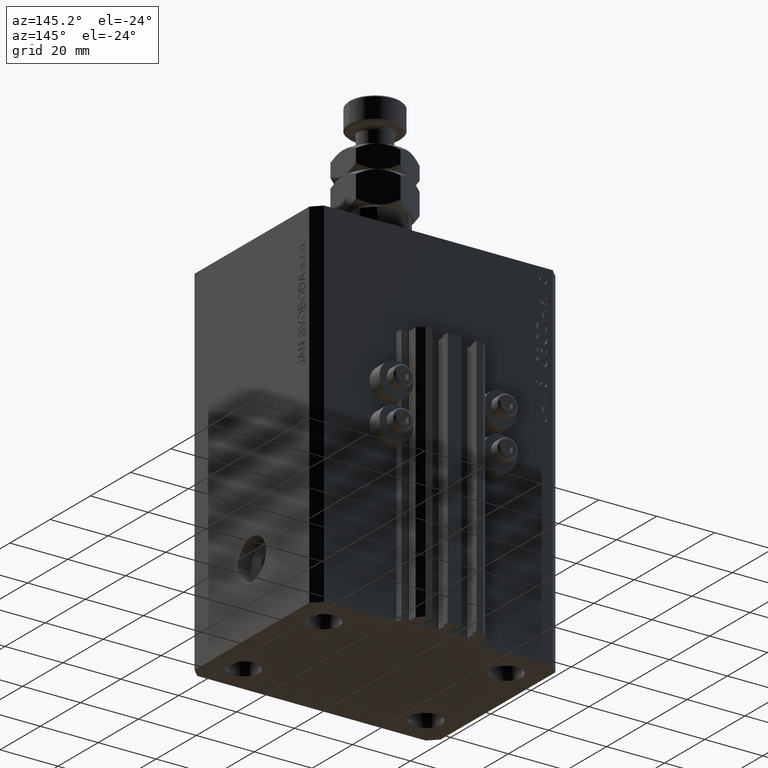
[diagram: clean part render]
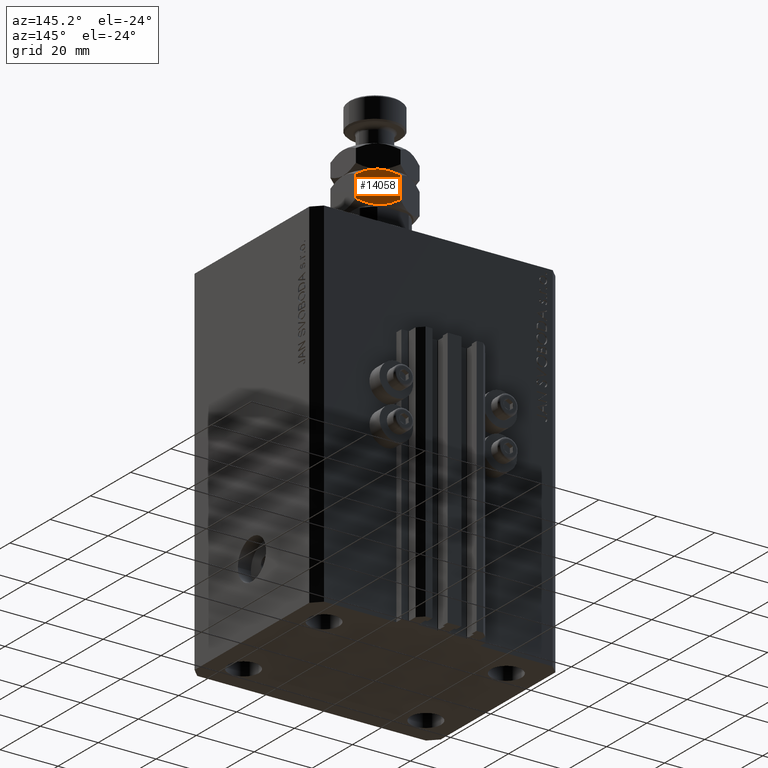
[diagram: same view with one face highlighted and labeled with its STEP entity id]
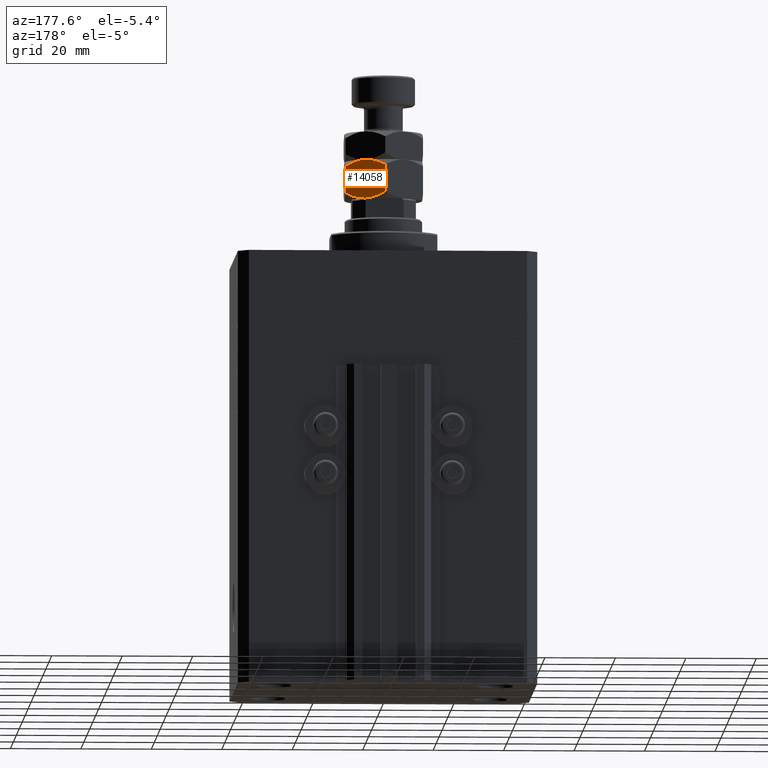
[diagram: same view with one face highlighted and labeled with its STEP entity id]
A machine part, auxiliary view. The second image highlights one B-rep face of the part: STEP entity #14058.
A second angle (auxiliary view) of the same face is appended — the face is thin or edge-on in the first view.
In plain terms, the highlighted planar face has unit normal (-0.5, -0.866, 0).
Its self-contained STEP definition (entity closure, byte-faithful):
#344 = CARTESIAN_POINT ( 'NONE',  ( 6.470625887979895019, 8.965888323921213043, 10.95634070256487824 ) ) ;
#766 = AXIS2_PLACEMENT_3D ( 'NONE', #17113, #13167, #32461 ) ;
#1714 = CARTESIAN_POINT ( 'NONE',  ( 9.006588997586899406E-16, 12.70170592217176342, 1.701705922171758312 ) ) ;
#3205 = EDGE_CURVE ( 'NONE', #17703, #21466, #26308, .T. ) ;
#3219 = LINE ( 'NONE', #33627, #34595 ) ;
#4048 = CARTESIAN_POINT ( 'NONE',  ( 10.13752086928278295, 6.848805519375901874, 9.796246636118256745 ) ) ;
#4731 = CARTESIAN_POINT ( 'NONE',  ( 0.000000000000000000, 12.70170592217176342, 11.00000000000000000 ) ) ;
#5072 = CARTESIAN_POINT ( 'NONE',  ( 5.018290712253357100, 9.804394428580492260, -1.345088320239828938E-15 ) ) ;
#5149 = CARTESIAN_POINT ( 'NONE',  ( 9.251785468064189999, 7.360185091700237159, 0.7776848045220270400 ) ) ;
#5334 = B_SPLINE_CURVE_WITH_KNOTS ( 'NONE', 3,
 ( #5567, #20872, #9033, #23857, #20633, #38957, #5072, #35739 ),
 .UNSPECIFIED., .F., .F.,
 ( 4, 2, 2, 4 ),
 ( 2.544311317623912303E-07, 0.003291871675740029504, 0.004937680298044162114, 0.006583488920348296025 ),
 .UNSPECIFIED. ) ;
#5567 = CARTESIAN_POINT ( 'NONE',  ( 9.006588997586899406E-16, 12.70170592217176342, 1.701705922171758312 ) ) ;
#6463 = CARTESIAN_POINT ( 'NONE',  ( -4.327962126576701651E-16, 12.70170592217176342, 9.298294077828241910 ) ) ;
#7002 = EDGE_CURVE ( 'NONE', #21466, #28050, #20219, .T. ) ;
#7759 = CARTESIAN_POINT ( 'NONE',  ( 11.00000000000000000, 6.350852961085883486, 9.298294077828240134 ) ) ;
#8159 = VECTOR ( 'NONE', #42293, 1000.000000000000000 ) ;
#8380 = CARTESIAN_POINT ( 'NONE',  ( 11.00000000000000000, 6.350852961085883486, 1.701705922171761198 ) ) ;
#9033 = CARTESIAN_POINT ( 'NONE',  ( 1.744478007639208350, 11.69453107486588195, 0.7806233875467714078 ) ) ;
#9838 = EDGE_CURVE ( 'NONE', #16134, #18060, #18182, .T. ) ;
#9946 = PLANE ( 'NONE',  #766 ) ;
#10624 = DIRECTION ( 'NONE',  ( -0.000000000000000000, -0.000000000000000000, -1.000000000000000000 ) ) ;
#11709 = CARTESIAN_POINT ( 'NONE',  ( 5.499999999999998224, 9.526279441628819455, 11.00000000000000000 ) ) ;
#12454 = CARTESIAN_POINT ( 'NONE',  ( 11.00000000000000000, 6.350852961085883486, 1.701705922171761198 ) ) ;
#13167 = DIRECTION ( 'NONE',  ( -0.4999999999999998890, -0.8660254037844387076, 0.000000000000000000 ) ) ;
#14058 = ADVANCED_FACE ( 'NONE', ( #31739 ), #9946, .F. ) ;
#15411 = CARTESIAN_POINT ( 'NONE',  ( 5.981709287746640236, 9.248164454677155533, 11.00000000000000000 ) ) ;
#15635 = CARTESIAN_POINT ( 'NONE',  ( 1.748214531935807559, 11.69237379155741152, 10.22231519547797518 ) ) ;
#16032 = CARTESIAN_POINT ( 'NONE',  ( 7.397073880711847238, 8.431003325927232339, 0.1689086083647579339 ) ) ;
#16134 = VERTEX_POINT ( 'NONE', #22378 ) ;
#17113 = CARTESIAN_POINT ( 'NONE',  ( 11.00000000000000000, 6.350852961085883486, 11.00000000000000000 ) ) ;
#17152 = ORIENTED_EDGE ( 'NONE', *, *, #45561, .T. ) ;
#17703 = VERTEX_POINT ( 'NONE', #34833 ) ;
#18060 = VERTEX_POINT ( 'NONE', #12454 ) ;
#18182 = B_SPLINE_CURVE_WITH_KNOTS ( 'NONE', 3,
 ( #27667, #19494, #16032, #5149, #20229, #8380 ),
 .UNSPECIFIED., .F., .F.,
 ( 4, 2, 4 ),
 ( 0.006583488920348296025, 0.009852050593448707927, 0.01312061226654912330 ),
 .UNSPECIFIED. ) ;
#19126 = CARTESIAN_POINT ( 'NONE',  ( 9.255521992360790762, 7.358027808391762292, 10.21937661245322460 ) ) ;
#19494 = CARTESIAN_POINT ( 'NONE',  ( 6.456670474420574735, 8.973945485696338764, -1.192622389734053694E-15 ) ) ;
#19844 = CARTESIAN_POINT ( 'NONE',  ( 5.499999999999998224, 9.526279441628819455, 11.00000000000000000 ) ) ;
#20034 = ORIENTED_EDGE ( 'NONE', *, *, #23024, .F. ) ;
#20219 = B_SPLINE_CURVE_WITH_KNOTS ( 'NONE', 3,
 ( #19844, #38645, #46528, #15635, #30732, #38882 ),
 .UNSPECIFIED., .F., .F.,
 ( 4, 2, 4 ),
 ( 0.006583488920348298627, 0.009852050593448711396, 0.01312061226654912156 ),
 .UNSPECIFIED. ) ;
#20229 = CARTESIAN_POINT ( 'NONE',  ( 10.13851939750335696, 6.848229018838962290, 1.204329864418605567 ) ) ;
#20633 = CARTESIAN_POINT ( 'NONE',  ( 3.579894028994819788, 10.63485314086127431, 0.2081220748670722098 ) ) ;
#20872 = CARTESIAN_POINT ( 'NONE',  ( 0.8624791307172143817, 12.20375336388174503, 1.203753363881742811 ) ) ;
#21466 = VERTEX_POINT ( 'NONE', #46116 ) ;
#21590 = EDGE_CURVE ( 'NONE', #27431, #16134, #5334, .T. ) ;
#22378 = CARTESIAN_POINT ( 'NONE',  ( 5.499999999999999112, 9.526279441628826561, 0.000000000000000000 ) ) ;
#22836 = ORIENTED_EDGE ( 'NONE', *, *, #7002, .F. ) ;
#23024 = EDGE_CURVE ( 'NONE', #28050, #27431, #38854, .T. ) ;
#23857 = CARTESIAN_POINT ( 'NONE',  ( 3.115032419653387397, 10.90324111615047364, 0.3282192120904029453 ) ) ;
#23964 = ORIENTED_EDGE ( 'NONE', *, *, #3205, .F. ) ;
#26308 = B_SPLINE_CURVE_WITH_KNOTS ( 'NONE', 3,
 ( #7759, #4048, #19126, #46309, #34222, #344, #15411, #11709 ),
 .UNSPECIFIED., .F., .F.,
 ( 4, 2, 2, 4 ),
 ( 2.544311317614349830E-07, 0.003291871675740032106, 0.004937680298044164716, 0.006583488920348298627 ),
 .UNSPECIFIED. ) ;
#27431 = VERTEX_POINT ( 'NONE', #1714 ) ;
#27667 = CARTESIAN_POINT ( 'NONE',  ( 5.499999999999999112, 9.526279441628826561, 0.000000000000000000 ) ) ;
#28050 = VERTEX_POINT ( 'NONE', #6463 ) ;
#30732 = CARTESIAN_POINT ( 'NONE',  ( 0.8614806024966432663, 12.20432986441868728, 9.795670135581396210 ) ) ;
#31739 = FACE_OUTER_BOUND ( 'NONE', #32208, .T. ) ;
#32208 = EDGE_LOOP ( 'NONE', ( #36901, #20034, #22836, #23964, #17152, #33587 ) ) ;
#32461 = DIRECTION ( 'NONE',  ( 0.8660254037844387076, -0.4999999999999998890, 0.000000000000000000 ) ) ;
#33587 = ORIENTED_EDGE ( 'NONE', *, *, #9838, .F. ) ;
#33627 = CARTESIAN_POINT ( 'NONE',  ( 11.00000000000000000, 6.350852961085883486, 11.00000000000000000 ) ) ;
#34222 = CARTESIAN_POINT ( 'NONE',  ( 7.420105971005182433, 8.417705742396377033, 10.79187792513293154 ) ) ;
#34595 = VECTOR ( 'NONE', #10624, 1000.000000000000000 ) ;
#34833 = CARTESIAN_POINT ( 'NONE',  ( 11.00000000000000000, 6.350852961085883486, 9.298294077828240134 ) ) ;
#35739 = CARTESIAN_POINT ( 'NONE',  ( 5.499999999999999112, 9.526279441628826561, 0.000000000000000000 ) ) ;
#36901 = ORIENTED_EDGE ( 'NONE', *, *, #21590, .F. ) ;
#38645 = CARTESIAN_POINT ( 'NONE',  ( 4.543329525579426154, 10.07861339756131080, 11.00000000000000000 ) ) ;
#38854 = LINE ( 'NONE', #4731, #8159 ) ;
#38882 = CARTESIAN_POINT ( 'NONE',  ( -4.327962126576701651E-16, 12.70170592217176342, 9.298294077828241910 ) ) ;
#38957 = CARTESIAN_POINT ( 'NONE',  ( 4.529374112020105869, 10.08667055933643830, 0.04365929743512447087 ) ) ;
#42293 = DIRECTION ( 'NONE',  ( -0.000000000000000000, -0.000000000000000000, -1.000000000000000000 ) ) ;
#45561 = EDGE_CURVE ( 'NONE', #17703, #18060, #3219, .T. ) ;
#46116 = CARTESIAN_POINT ( 'NONE',  ( 5.499999999999998224, 9.526279441628819455, 11.00000000000000000 ) ) ;
#46309 = CARTESIAN_POINT ( 'NONE',  ( 7.884967580346613936, 8.149317767107177701, 10.67178078790959717 ) ) ;
#46528 = CARTESIAN_POINT ( 'NONE',  ( 3.602926119288152318, 10.62155555733041901, 10.83109139163524581 ) ) ;